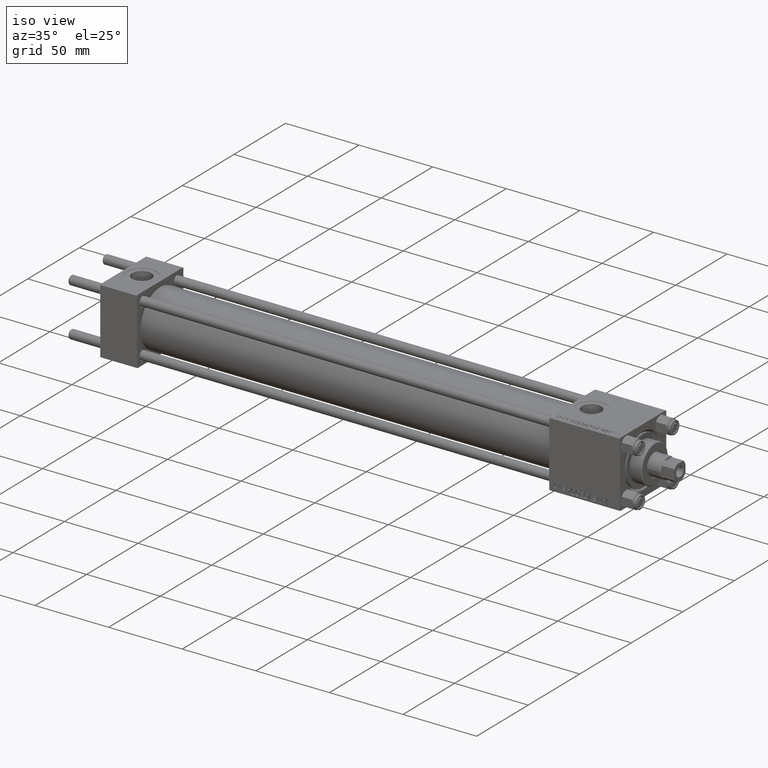
[diagram: clean part render]
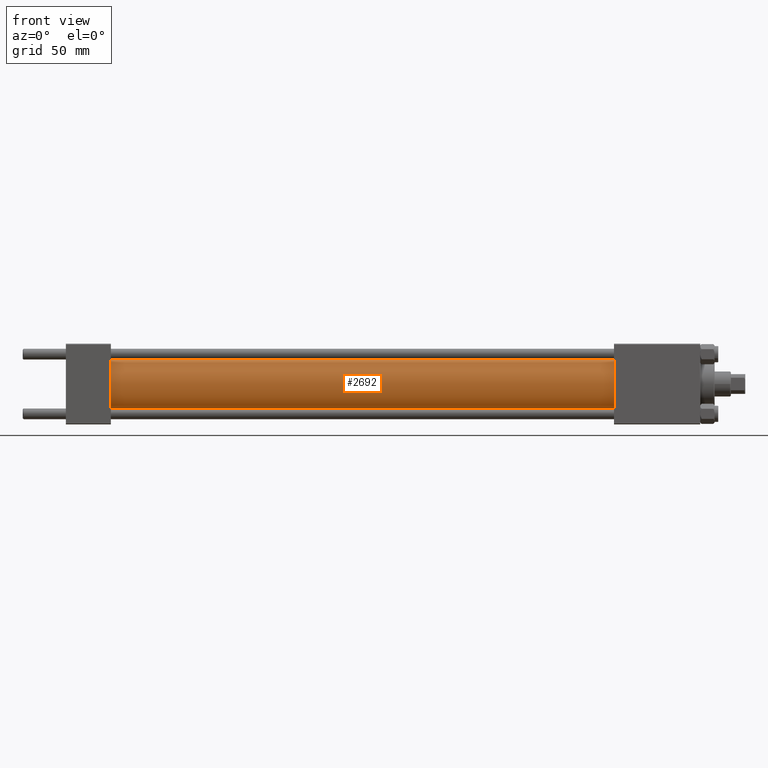
[diagram: tour spotlight — one face highlighted and labeled with its STEP entity id]
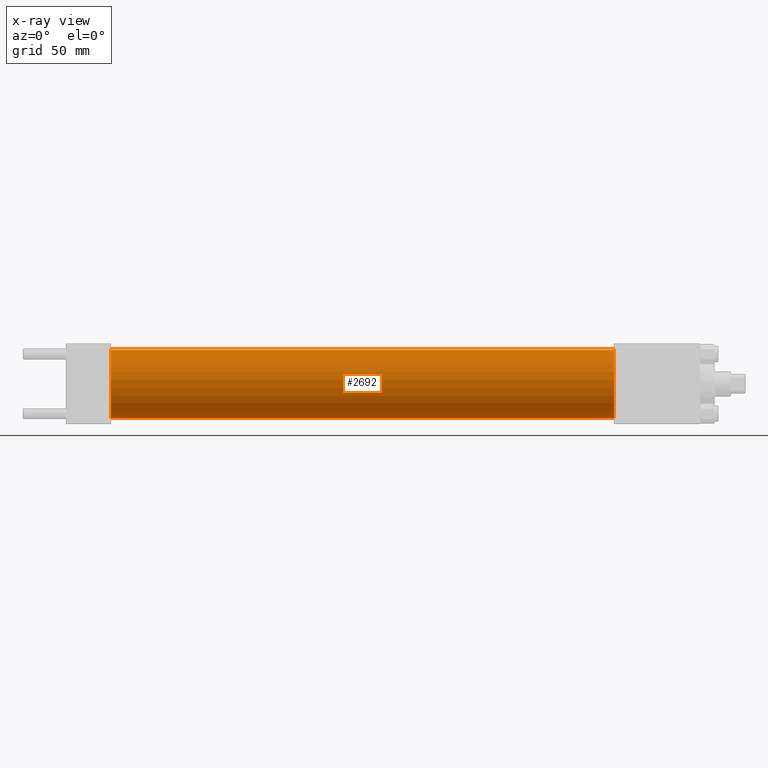
[diagram: x-ray of the same camera — body ghosted, this tour face saturated]
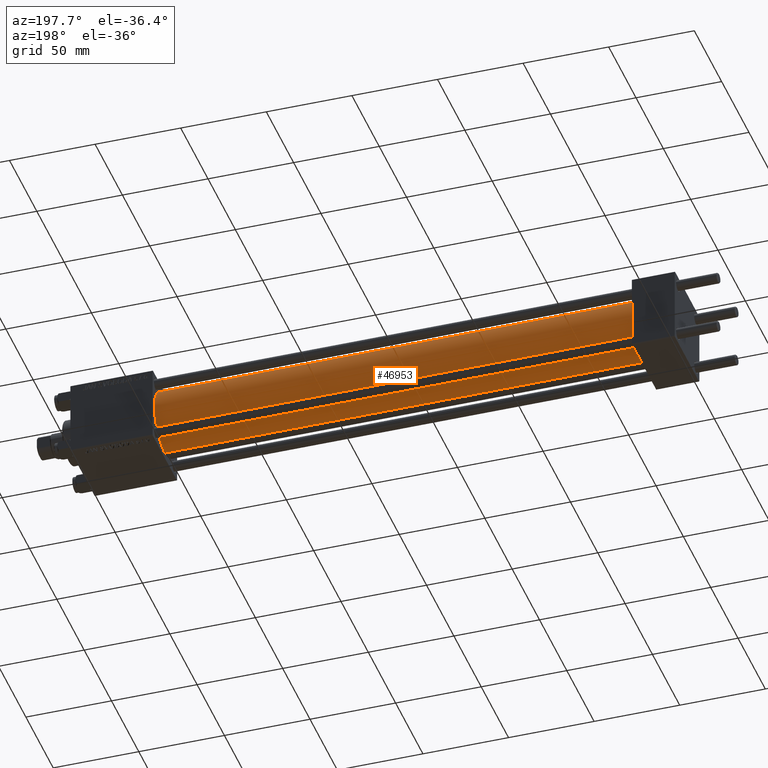
[diagram: tour spotlight — one face highlighted and labeled with its STEP entity id]
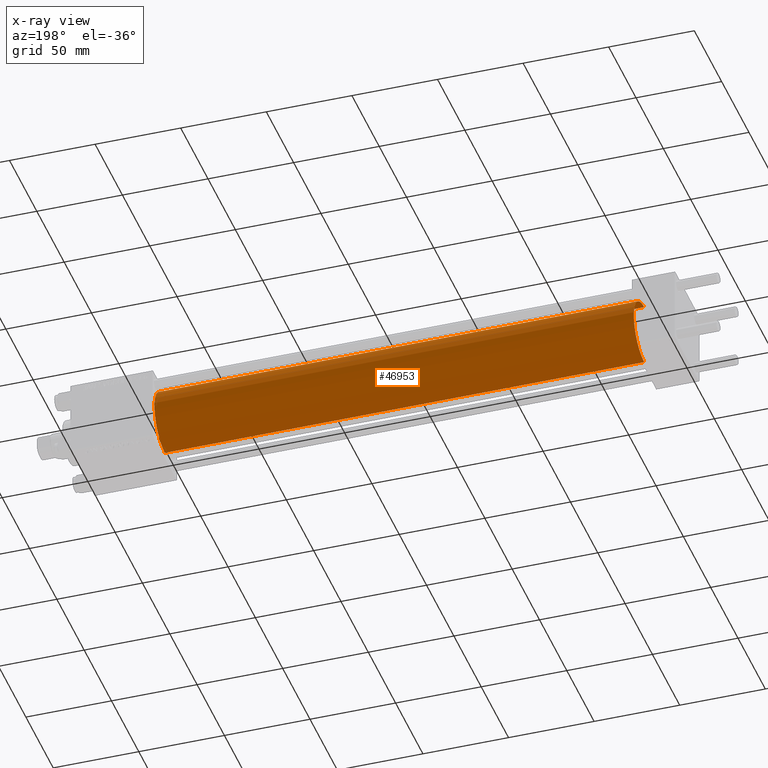
[diagram: x-ray of the same camera — body ghosted, this tour face saturated]
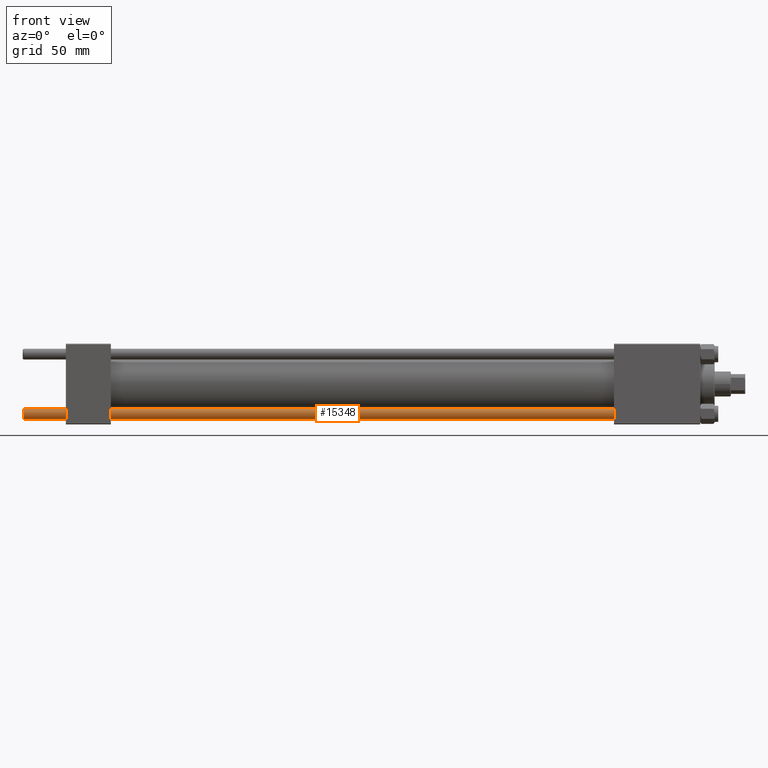
[diagram: tour spotlight — one face highlighted and labeled with its STEP entity id]
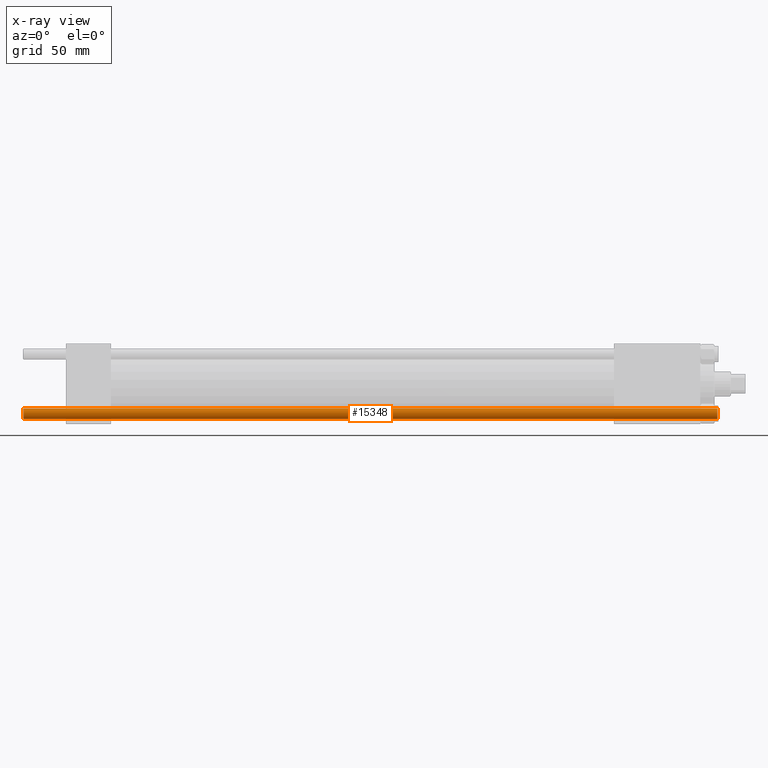
[diagram: x-ray of the same camera — body ghosted, this tour face saturated]
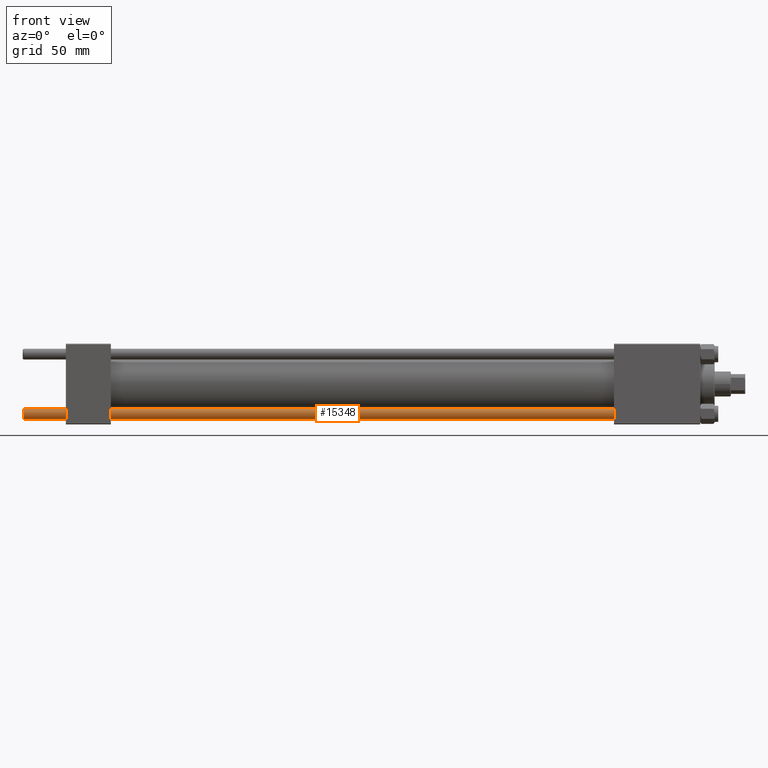
[diagram: tour spotlight — one face highlighted and labeled with its STEP entity id]
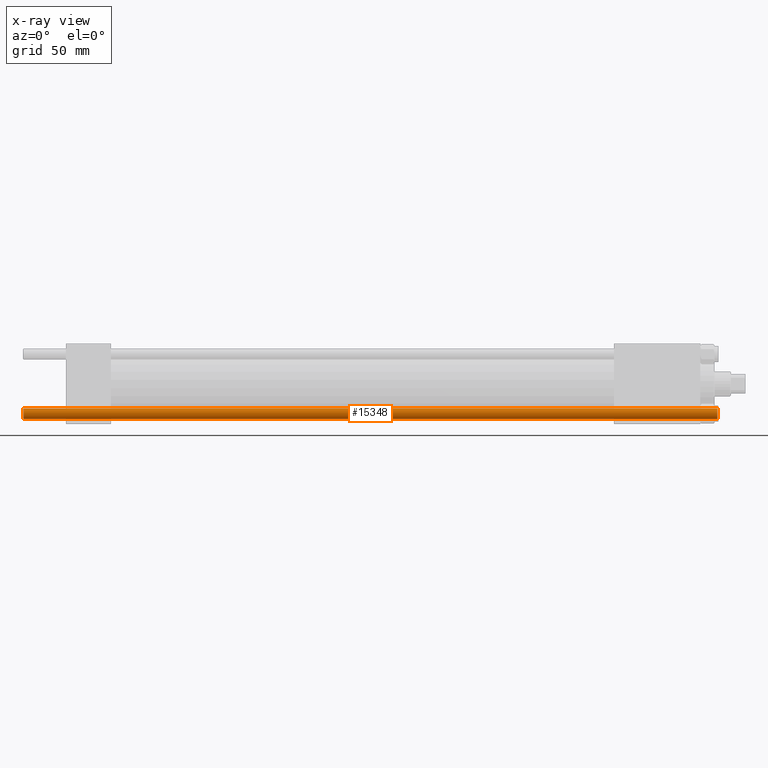
[diagram: x-ray of the same camera — body ghosted, this tour face saturated]
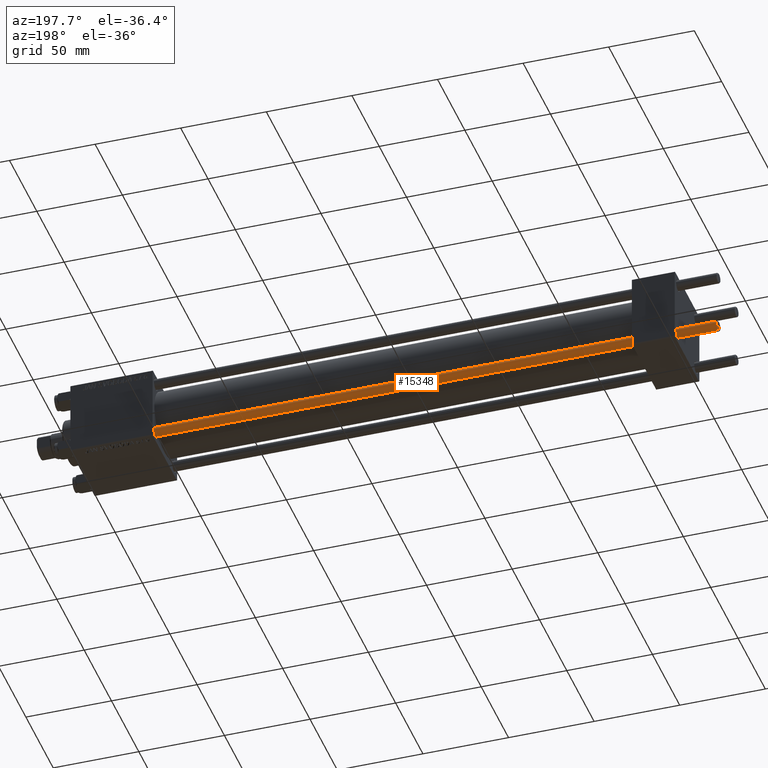
[diagram: tour spotlight — one face highlighted and labeled with its STEP entity id]
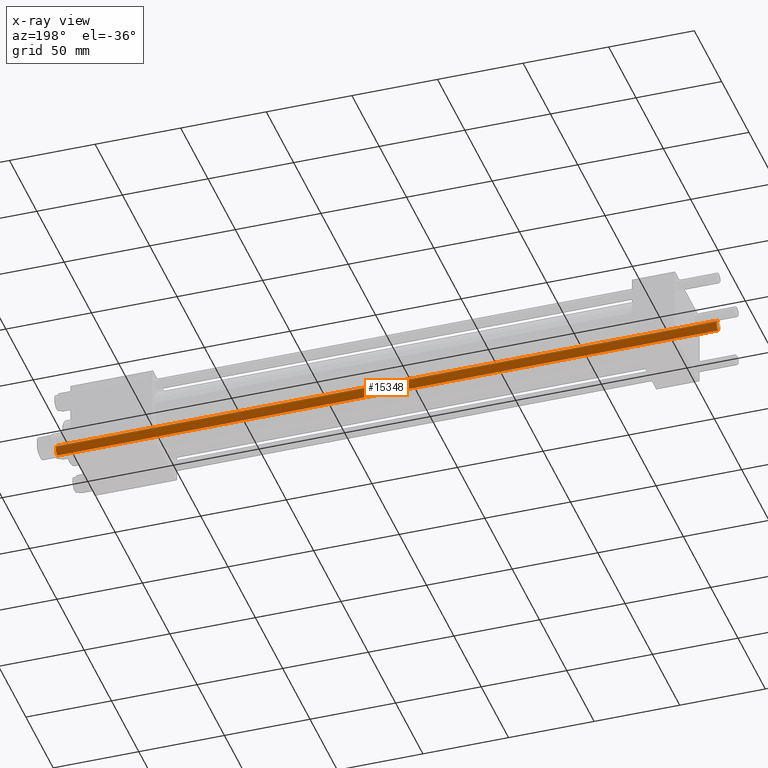
[diagram: x-ray of the same camera — body ghosted, this tour face saturated]
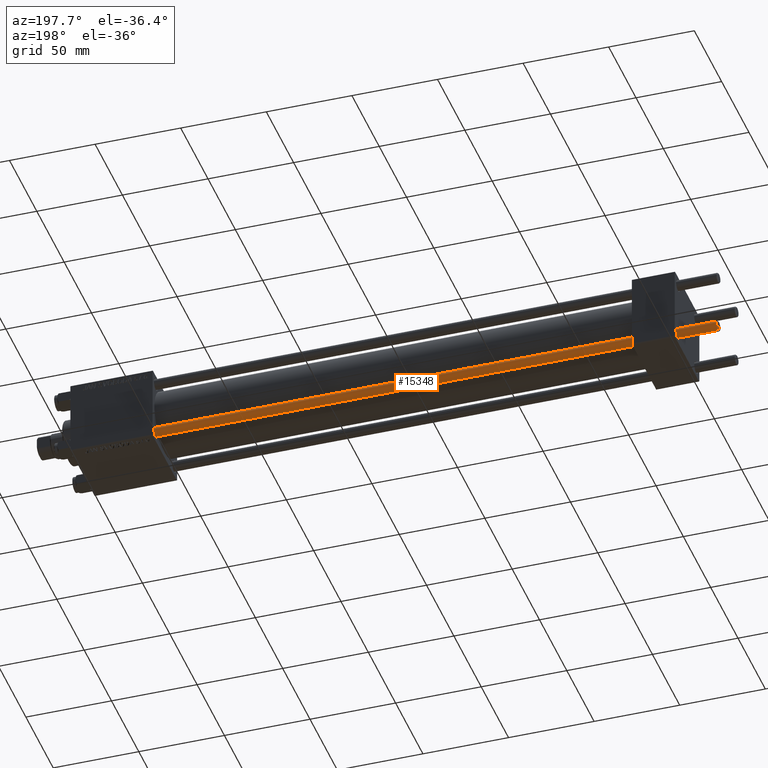
[diagram: tour spotlight — one face highlighted and labeled with its STEP entity id]
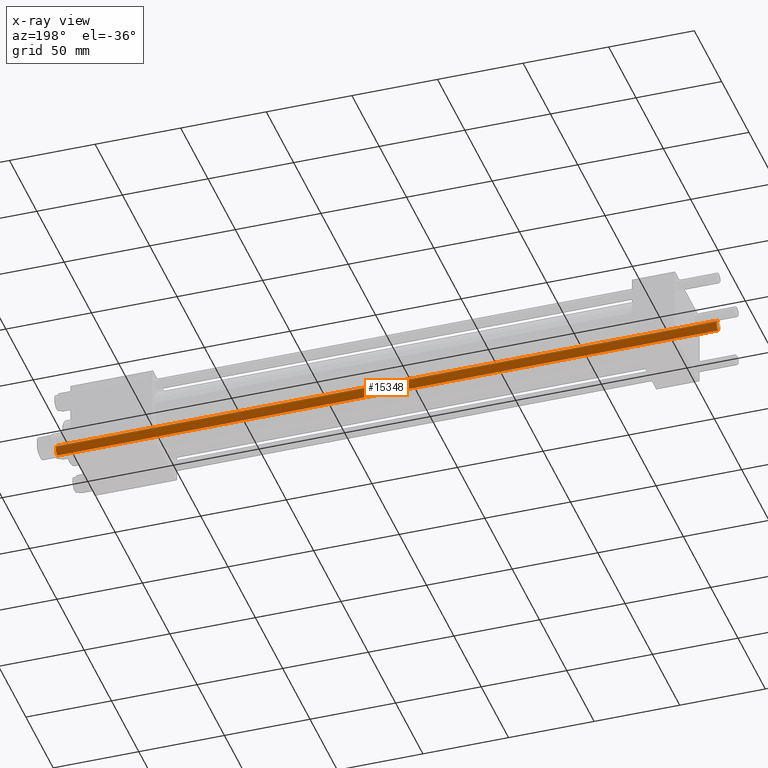
[diagram: x-ray of the same camera — body ghosted, this tour face saturated]
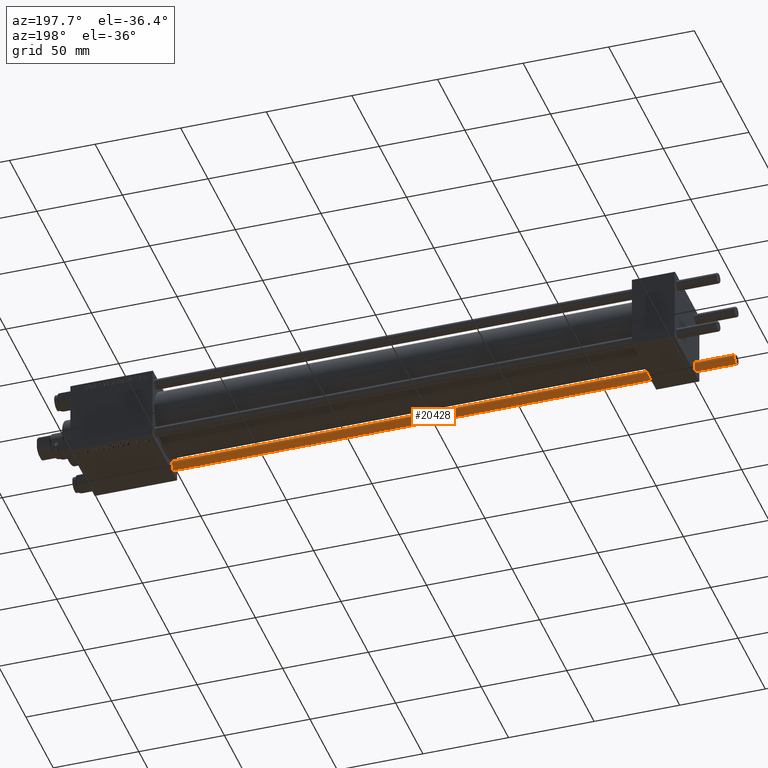
[diagram: tour spotlight — one face highlighted and labeled with its STEP entity id]
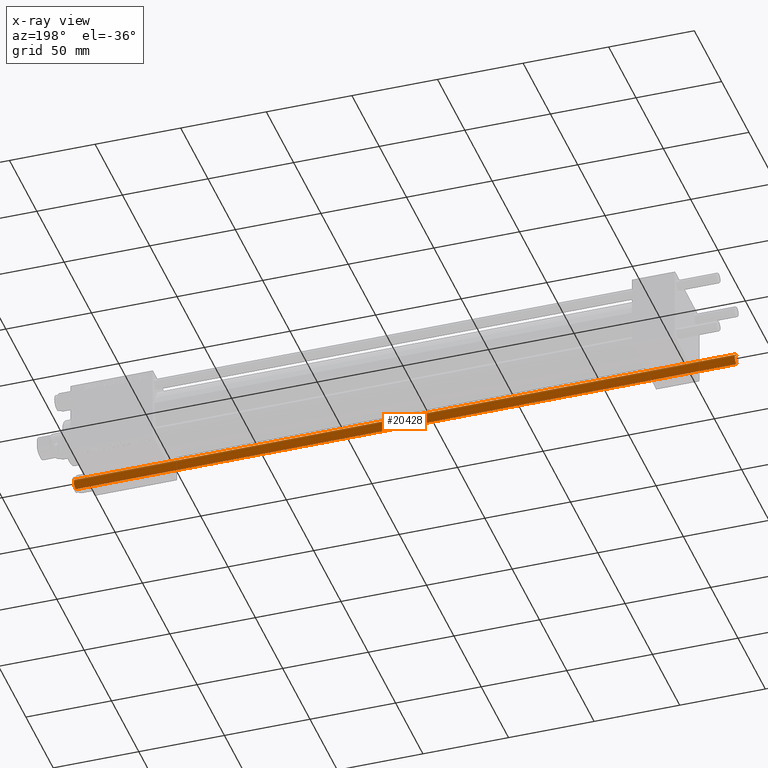
[diagram: x-ray of the same camera — body ghosted, this tour face saturated]
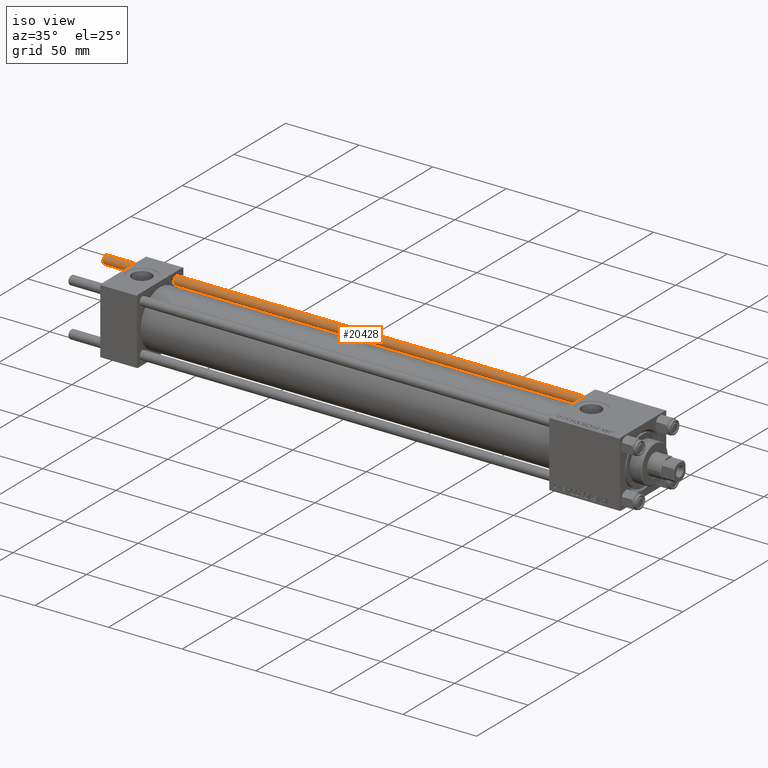
[diagram: tour spotlight — one face highlighted and labeled with its STEP entity id]
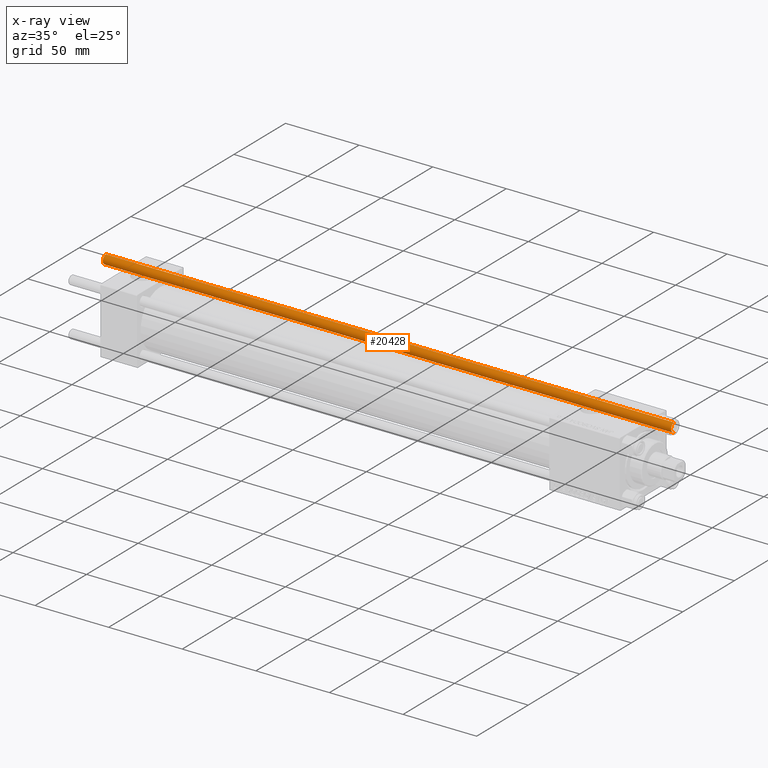
[diagram: x-ray of the same camera — body ghosted, this tour face saturated]
A machine part: a face-by-face anatomy tour. The part has 1133 B-rep faces; the first image is the clean iso view, then the 8 largest visible faces are spotlighted one at a time (largest first), each with its STEP entity span.

Face 1 — front view, entity #2692. An x-ray twin of the same camera follows (body ghosted, this face saturated) — the face is partly hidden behind the body. In plain terms, the highlighted cylindrical surface (edge-blend (fillet) strip) has radius 19 mm, axis along (-1, -0, -0).
Definition (entity closure, byte-faithful):
#277 = CARTESIAN_POINT ( 'NONE',  ( 25.00000000000002132, 0.000000000000000000, 19.00000000000000000 ) ) ;
#1554 = ORIENTED_EDGE ( 'NONE', *, *, #10870, .T. ) ;
#2529 = VERTEX_POINT ( 'NONE', #277 ) ;
#2692 = ADVANCED_FACE ( 'NONE', ( #47189 ), #4806, .T. ) ;
#4806 = CYLINDRICAL_SURFACE ( 'NONE', #32375, 19.00000000000000000 ) ;
#5005 = CARTESIAN_POINT ( 'NONE',  ( 305.0000000000000568, 0.000000000000000000, 0.000000000000000000 ) ) ;
#6769 = EDGE_CURVE ( 'NONE', #49634, #34014, #14683, .T. ) ;
#6874 = CARTESIAN_POINT ( 'NONE',  ( 305.0000000000000568, 2.326828918379970970E-15, -19.00000000000000000 ) ) ;
#7588 = ORIENTED_EDGE ( 'NONE', *, *, #6769, .F. ) ;
#8360 = VECTOR ( 'NONE', #24092, 1000.000000000000000 ) ;
#8558 = VERTEX_POINT ( 'NONE', #48192 ) ;
#8593 = DIRECTION ( 'NONE',  ( 0.000000000000000000, 0.000000000000000000, 1.000000000000000000 ) ) ;
#8694 = CARTESIAN_POINT ( 'NONE',  ( 305.0000000000000568, 0.000000000000000000, 19.00000000000000000 ) ) ;
#9143 = EDGE_CURVE ( 'NONE', #2529, #34014, #35687, .T. ) ;
#10870 = EDGE_CURVE ( 'NONE', #8558, #2529, #16254, .T. ) ;
#14683 = LINE ( 'NONE', #6874, #17180 ) ;
#16254 = LINE ( 'NONE', #8694, #8360 ) ;
#16694 = EDGE_LOOP ( 'NONE', ( #7588, #44286, #1554, #31962 ) ) ;
#16898 = CARTESIAN_POINT ( 'NONE',  ( 305.0000000000000568, 0.000000000000000000, 0.000000000000000000 ) ) ;
#17180 = VECTOR ( 'NONE', #22518, 1000.000000000000000 ) ;
#17980 = DIRECTION ( 'NONE',  ( 1.000000000000000000, -0.000000000000000000, 0.000000000000000000 ) ) ;
#19899 = DIRECTION ( 'NONE',  ( 0.000000000000000000, 0.000000000000000000, -1.000000000000000000 ) ) ;
#21538 = EDGE_CURVE ( 'NONE', #8558, #49634, #24740, .T. ) ;
#22518 = DIRECTION ( 'NONE',  ( -1.000000000000000000, -0.000000000000000000, -0.000000000000000000 ) ) ;
#23626 = AXIS2_PLACEMENT_3D ( 'NONE', #48502, #17980, #25797 ) ;
#24092 = DIRECTION ( 'NONE',  ( -1.000000000000000000, -0.000000000000000000, -0.000000000000000000 ) ) ;
#24740 = CIRCLE ( 'NONE', #28768, 19.00000000000000000 ) ;
#25797 = DIRECTION ( 'NONE',  ( 0.000000000000000000, 0.000000000000000000, 1.000000000000000000 ) ) ;
#27517 = DIRECTION ( 'NONE',  ( -1.000000000000000000, -0.000000000000000000, -0.000000000000000000 ) ) ;
#28768 = AXIS2_PLACEMENT_3D ( 'NONE', #5005, #43333, #19899 ) ;
#31962 = ORIENTED_EDGE ( 'NONE', *, *, #9143, .T. ) ;
#32375 = AXIS2_PLACEMENT_3D ( 'NONE', #16898, #27517, #8593 ) ;
#34014 = VERTEX_POINT ( 'NONE', #44920 ) ;
#35687 = CIRCLE ( 'NONE', #23626, 19.00000000000000000 ) ;
#43333 = DIRECTION ( 'NONE',  ( 1.000000000000000000, 0.000000000000000000, 0.000000000000000000 ) ) ;
#44286 = ORIENTED_EDGE ( 'NONE', *, *, #21538, .F. ) ;
#44920 = CARTESIAN_POINT ( 'NONE',  ( 25.00000000000002132, 2.326828918379970970E-15, -19.00000000000000000 ) ) ;
#47189 = FACE_OUTER_BOUND ( 'NONE', #16694, .T. ) ;
#47388 = CARTESIAN_POINT ( 'NONE',  ( 305.0000000000000568, 2.326828918379970970E-15, -19.00000000000000000 ) ) ;
#48192 = CARTESIAN_POINT ( 'NONE',  ( 305.0000000000000568, 0.000000000000000000, 19.00000000000000000 ) ) ;
#48502 = CARTESIAN_POINT ( 'NONE',  ( 25.00000000000002132, 0.000000000000000000, 0.000000000000000000 ) ) ;
#49634 = VERTEX_POINT ( 'NONE', #47388 ) ;

Face 2 — auxiliary view, entity #46953. An x-ray twin of the same camera follows (body ghosted, this face saturated) — the face is partly hidden behind the body. In plain terms, the highlighted cylindrical surface (edge-blend (fillet) strip) has radius 19 mm, axis along (-1, -0, -0).
Definition (entity closure, byte-faithful):
#277 = CARTESIAN_POINT ( 'NONE',  ( 25.00000000000002132, 0.000000000000000000, 19.00000000000000000 ) ) ;
#2529 = VERTEX_POINT ( 'NONE', #277 ) ;
#3662 = EDGE_CURVE ( 'NONE', #34014, #2529, #46925, .T. ) ;
#4405 = CIRCLE ( 'NONE', #22132, 19.00000000000000000 ) ;
#6769 = EDGE_CURVE ( 'NONE', #49634, #34014, #14683, .T. ) ;
#6874 = CARTESIAN_POINT ( 'NONE',  ( 305.0000000000000568, 2.326828918379970970E-15, -19.00000000000000000 ) ) ;
#8360 = VECTOR ( 'NONE', #24092, 1000.000000000000000 ) ;
#8558 = VERTEX_POINT ( 'NONE', #48192 ) ;
#8694 = CARTESIAN_POINT ( 'NONE',  ( 305.0000000000000568, 0.000000000000000000, 19.00000000000000000 ) ) ;
#10870 = EDGE_CURVE ( 'NONE', #8558, #2529, #16254, .T. ) ;
#14308 = DIRECTION ( 'NONE',  ( 0.000000000000000000, 0.000000000000000000, -1.000000000000000000 ) ) ;
#14683 = LINE ( 'NONE', #6874, #17180 ) ;
#14738 = DIRECTION ( 'NONE',  ( 0.000000000000000000, 0.000000000000000000, 1.000000000000000000 ) ) ;
#16254 = LINE ( 'NONE', #8694, #8360 ) ;
#16387 = AXIS2_PLACEMENT_3D ( 'NONE', #46520, #49300, #14738 ) ;
#17014 = ORIENTED_EDGE ( 'NONE', *, *, #6769, .T. ) ;
#17180 = VECTOR ( 'NONE', #22518, 1000.000000000000000 ) ;
#22132 = AXIS2_PLACEMENT_3D ( 'NONE', #26179, #36775, #14308 ) ;
#22518 = DIRECTION ( 'NONE',  ( -1.000000000000000000, -0.000000000000000000, -0.000000000000000000 ) ) ;
#24092 = DIRECTION ( 'NONE',  ( -1.000000000000000000, -0.000000000000000000, -0.000000000000000000 ) ) ;
#26179 = CARTESIAN_POINT ( 'NONE',  ( 305.0000000000000568, 0.000000000000000000, 0.000000000000000000 ) ) ;
#29890 = EDGE_LOOP ( 'NONE', ( #39600, #17014, #37067, #41863 ) ) ;
#30358 = DIRECTION ( 'NONE',  ( 1.000000000000000000, -0.000000000000000000, 0.000000000000000000 ) ) ;
#31137 = CYLINDRICAL_SURFACE ( 'NONE', #16387, 19.00000000000000000 ) ;
#34014 = VERTEX_POINT ( 'NONE', #44920 ) ;
#34621 = CARTESIAN_POINT ( 'NONE',  ( 25.00000000000002132, 0.000000000000000000, 0.000000000000000000 ) ) ;
#36775 = DIRECTION ( 'NONE',  ( 1.000000000000000000, 0.000000000000000000, 0.000000000000000000 ) ) ;
#37067 = ORIENTED_EDGE ( 'NONE', *, *, #3662, .T. ) ;
#38064 = AXIS2_PLACEMENT_3D ( 'NONE', #34621, #30358, #41691 ) ;
#39600 = ORIENTED_EDGE ( 'NONE', *, *, #49733, .F. ) ;
#41691 = DIRECTION ( 'NONE',  ( 0.000000000000000000, 0.000000000000000000, 1.000000000000000000 ) ) ;
#41863 = ORIENTED_EDGE ( 'NONE', *, *, #10870, .F. ) ;
#44920 = CARTESIAN_POINT ( 'NONE',  ( 25.00000000000002132, 2.326828918379970970E-15, -19.00000000000000000 ) ) ;
#46266 = FACE_OUTER_BOUND ( 'NONE', #29890, .T. ) ;
#46520 = CARTESIAN_POINT ( 'NONE',  ( 305.0000000000000568, 0.000000000000000000, 0.000000000000000000 ) ) ;
#46925 = CIRCLE ( 'NONE', #38064, 19.00000000000000000 ) ;
#46953 = ADVANCED_FACE ( 'NONE', ( #46266 ), #31137, .T. ) ;
#47388 = CARTESIAN_POINT ( 'NONE',  ( 305.0000000000000568, 2.326828918379970970E-15, -19.00000000000000000 ) ) ;
#48192 = CARTESIAN_POINT ( 'NONE',  ( 305.0000000000000568, 0.000000000000000000, 19.00000000000000000 ) ) ;
#49300 = DIRECTION ( 'NONE',  ( -1.000000000000000000, -0.000000000000000000, -0.000000000000000000 ) ) ;
#49634 = VERTEX_POINT ( 'NONE', #47388 ) ;
#49733 = EDGE_CURVE ( 'NONE', #49634, #8558, #4405, .T. ) ;

Face 3 — front view, entity #15348. An x-ray twin of the same camera follows (body ghosted, this face saturated) — the face is partly hidden behind the body. In plain terms, the highlighted cylindrical surface (edge-blend (fillet) strip) has radius 3 mm, axis along (1, -0, 0).
Definition (entity closure, byte-faithful):
#426 = DIRECTION ( 'NONE',  ( -0.000000000000000000, -0.000000000000000000, -1.000000000000000000 ) ) ;
#866 = VERTEX_POINT ( 'NONE', #2530 ) ;
#2530 = CARTESIAN_POINT ( 'NONE',  ( -3.000000000000000444, 0.000000000000000000, 0.5000000000000004441 ) ) ;
#3727 = AXIS2_PLACEMENT_3D ( 'NONE', #42543, #426, #35480 ) ;
#4673 = AXIS2_PLACEMENT_3D ( 'NONE', #29911, #14262, #49325 ) ;
#5410 = DIRECTION ( 'NONE',  ( 0.000000000000000000, 0.000000000000000000, -1.000000000000000000 ) ) ;
#6368 = VERTEX_POINT ( 'NONE', #43281 ) ;
#8380 = VERTEX_POINT ( 'NONE', #19470 ) ;
#9301 = DIRECTION ( 'NONE',  ( -0.000000000000000000, -0.000000000000000000, -1.000000000000000000 ) ) ;
#9689 = EDGE_CURVE ( 'NONE', #36913, #866, #40563, .T. ) ;
#11140 = EDGE_LOOP ( 'NONE', ( #24669, #12709, #17853, #24691 ) ) ;
#11785 = FACE_OUTER_BOUND ( 'NONE', #11140, .T. ) ;
#12139 = CARTESIAN_POINT ( 'NONE',  ( -3.000000000000000444, 0.000000000000000000, 386.5000000000000568 ) ) ;
#12709 = ORIENTED_EDGE ( 'NONE', *, *, #23077, .T. ) ;
#13334 = CARTESIAN_POINT ( 'NONE',  ( -3.000000000000000444, 0.000000000000000000, 387.0000000000000000 ) ) ;
#14262 = DIRECTION ( 'NONE',  ( -0.000000000000000000, -0.000000000000000000, 1.000000000000000000 ) ) ;
#15348 = ADVANCED_FACE ( 'NONE', ( #11785 ), #31457, .T. ) ;
#17505 = CARTESIAN_POINT ( 'NONE',  ( 0.000000000000000000, 0.000000000000000000, 386.5000000000000568 ) ) ;
#17853 = ORIENTED_EDGE ( 'NONE', *, *, #23353, .T. ) ;
#19470 = CARTESIAN_POINT ( 'NONE',  ( 3.000000000000000444, 3.673940397442060361E-16, 386.5000000000000568 ) ) ;
#23077 = EDGE_CURVE ( 'NONE', #8380, #6368, #31031, .T. ) ;
#23353 = EDGE_CURVE ( 'NONE', #6368, #866, #40106, .T. ) ;
#24669 = ORIENTED_EDGE ( 'NONE', *, *, #30502, .T. ) ;
#24691 = ORIENTED_EDGE ( 'NONE', *, *, #9689, .F. ) ;
#27238 = CARTESIAN_POINT ( 'NONE',  ( 3.000000000000000444, 3.673940397442060361E-16, 387.0000000000000000 ) ) ;
#28836 = VECTOR ( 'NONE', #42610, 1000.000000000000000 ) ;
#28864 = DIRECTION ( 'NONE',  ( 1.000000000000000000, 0.000000000000000000, 0.000000000000000000 ) ) ;
#29225 = VECTOR ( 'NONE', #9301, 1000.000000000000000 ) ;
#29911 = CARTESIAN_POINT ( 'NONE',  ( 0.000000000000000000, 0.000000000000000000, 0.5000000000000004441 ) ) ;
#30502 = EDGE_CURVE ( 'NONE', #36913, #8380, #45126, .T. ) ;
#31031 = LINE ( 'NONE', #27238, #28836 ) ;
#31457 = CYLINDRICAL_SURFACE ( 'NONE', #3727, 3.000000000000000444 ) ;
#35480 = DIRECTION ( 'NONE',  ( -1.000000000000000000, 0.000000000000000000, 0.000000000000000000 ) ) ;
#36913 = VERTEX_POINT ( 'NONE', #12139 ) ;
#39513 = AXIS2_PLACEMENT_3D ( 'NONE', #17505, #5410, #28864 ) ;
#40106 = CIRCLE ( 'NONE', #4673, 3.000000000000000444 ) ;
#40563 = LINE ( 'NONE', #13334, #29225 ) ;
#42543 = CARTESIAN_POINT ( 'NONE',  ( 0.000000000000000000, 0.000000000000000000, 387.0000000000000000 ) ) ;
#42610 = DIRECTION ( 'NONE',  ( -0.000000000000000000, -0.000000000000000000, -1.000000000000000000 ) ) ;
#43281 = CARTESIAN_POINT ( 'NONE',  ( 3.000000000000000444, 3.673940397442060361E-16, 0.5000000000000004441 ) ) ;
#45126 = CIRCLE ( 'NONE', #39513, 3.000000000000000444 ) ;
#49325 = DIRECTION ( 'NONE',  ( 1.000000000000000000, 0.000000000000000000, 0.000000000000000000 ) ) ;

Face 4 — front view, entity #15348. An x-ray twin of the same camera follows (body ghosted, this face saturated) — the face is partly hidden behind the body. In plain terms, the highlighted cylindrical surface (edge-blend (fillet) strip) has radius 3 mm, axis along (-1, 0, 0).
Definition (entity closure, byte-faithful):
#426 = DIRECTION ( 'NONE',  ( -0.000000000000000000, -0.000000000000000000, -1.000000000000000000 ) ) ;
#866 = VERTEX_POINT ( 'NONE', #2530 ) ;
#2530 = CARTESIAN_POINT ( 'NONE',  ( -3.000000000000000444, 0.000000000000000000, 0.5000000000000004441 ) ) ;
#3727 = AXIS2_PLACEMENT_3D ( 'NONE', #42543, #426, #35480 ) ;
#4673 = AXIS2_PLACEMENT_3D ( 'NONE', #29911, #14262, #49325 ) ;
#5410 = DIRECTION ( 'NONE',  ( 0.000000000000000000, 0.000000000000000000, -1.000000000000000000 ) ) ;
#6368 = VERTEX_POINT ( 'NONE', #43281 ) ;
#8380 = VERTEX_POINT ( 'NONE', #19470 ) ;
#9301 = DIRECTION ( 'NONE',  ( -0.000000000000000000, -0.000000000000000000, -1.000000000000000000 ) ) ;
#9689 = EDGE_CURVE ( 'NONE', #36913, #866, #40563, .T. ) ;
#11140 = EDGE_LOOP ( 'NONE', ( #24669, #12709, #17853, #24691 ) ) ;
#11785 = FACE_OUTER_BOUND ( 'NONE', #11140, .T. ) ;
#12139 = CARTESIAN_POINT ( 'NONE',  ( -3.000000000000000444, 0.000000000000000000, 386.5000000000000568 ) ) ;
#12709 = ORIENTED_EDGE ( 'NONE', *, *, #23077, .T. ) ;
#13334 = CARTESIAN_POINT ( 'NONE',  ( -3.000000000000000444, 0.000000000000000000, 387.0000000000000000 ) ) ;
#14262 = DIRECTION ( 'NONE',  ( -0.000000000000000000, -0.000000000000000000, 1.000000000000000000 ) ) ;
#15348 = ADVANCED_FACE ( 'NONE', ( #11785 ), #31457, .T. ) ;
#17505 = CARTESIAN_POINT ( 'NONE',  ( 0.000000000000000000, 0.000000000000000000, 386.5000000000000568 ) ) ;
#17853 = ORIENTED_EDGE ( 'NONE', *, *, #23353, .T. ) ;
#19470 = CARTESIAN_POINT ( 'NONE',  ( 3.000000000000000444, 3.673940397442060361E-16, 386.5000000000000568 ) ) ;
#23077 = EDGE_CURVE ( 'NONE', #8380, #6368, #31031, .T. ) ;
#23353 = EDGE_CURVE ( 'NONE', #6368, #866, #40106, .T. ) ;
#24669 = ORIENTED_EDGE ( 'NONE', *, *, #30502, .T. ) ;
#24691 = ORIENTED_EDGE ( 'NONE', *, *, #9689, .F. ) ;
#27238 = CARTESIAN_POINT ( 'NONE',  ( 3.000000000000000444, 3.673940397442060361E-16, 387.0000000000000000 ) ) ;
#28836 = VECTOR ( 'NONE', #42610, 1000.000000000000000 ) ;
#28864 = DIRECTION ( 'NONE',  ( 1.000000000000000000, 0.000000000000000000, 0.000000000000000000 ) ) ;
#29225 = VECTOR ( 'NONE', #9301, 1000.000000000000000 ) ;
#29911 = CARTESIAN_POINT ( 'NONE',  ( 0.000000000000000000, 0.000000000000000000, 0.5000000000000004441 ) ) ;
#30502 = EDGE_CURVE ( 'NONE', #36913, #8380, #45126, .T. ) ;
#31031 = LINE ( 'NONE', #27238, #28836 ) ;
#31457 = CYLINDRICAL_SURFACE ( 'NONE', #3727, 3.000000000000000444 ) ;
#35480 = DIRECTION ( 'NONE',  ( -1.000000000000000000, 0.000000000000000000, 0.000000000000000000 ) ) ;
#36913 = VERTEX_POINT ( 'NONE', #12139 ) ;
#39513 = AXIS2_PLACEMENT_3D ( 'NONE', #17505, #5410, #28864 ) ;
#40106 = CIRCLE ( 'NONE', #4673, 3.000000000000000444 ) ;
#40563 = LINE ( 'NONE', #13334, #29225 ) ;
#42543 = CARTESIAN_POINT ( 'NONE',  ( 0.000000000000000000, 0.000000000000000000, 387.0000000000000000 ) ) ;
#42610 = DIRECTION ( 'NONE',  ( -0.000000000000000000, -0.000000000000000000, -1.000000000000000000 ) ) ;
#43281 = CARTESIAN_POINT ( 'NONE',  ( 3.000000000000000444, 3.673940397442060361E-16, 0.5000000000000004441 ) ) ;
#45126 = CIRCLE ( 'NONE', #39513, 3.000000000000000444 ) ;
#49325 = DIRECTION ( 'NONE',  ( 1.000000000000000000, 0.000000000000000000, 0.000000000000000000 ) ) ;

Face 5 — auxiliary view, entity #15348. An x-ray twin of the same camera follows (body ghosted, this face saturated) — the face is partly hidden behind the body. In plain terms, the highlighted cylindrical surface (edge-blend (fillet) strip) has radius 3 mm, axis along (-1, -0, -0).
Definition (entity closure, byte-faithful):
#426 = DIRECTION ( 'NONE',  ( -0.000000000000000000, -0.000000000000000000, -1.000000000000000000 ) ) ;
#866 = VERTEX_POINT ( 'NONE', #2530 ) ;
#2530 = CARTESIAN_POINT ( 'NONE',  ( -3.000000000000000444, 0.000000000000000000, 0.5000000000000004441 ) ) ;
#3727 = AXIS2_PLACEMENT_3D ( 'NONE', #42543, #426, #35480 ) ;
#4673 = AXIS2_PLACEMENT_3D ( 'NONE', #29911, #14262, #49325 ) ;
#5410 = DIRECTION ( 'NONE',  ( 0.000000000000000000, 0.000000000000000000, -1.000000000000000000 ) ) ;
#6368 = VERTEX_POINT ( 'NONE', #43281 ) ;
#8380 = VERTEX_POINT ( 'NONE', #19470 ) ;
#9301 = DIRECTION ( 'NONE',  ( -0.000000000000000000, -0.000000000000000000, -1.000000000000000000 ) ) ;
#9689 = EDGE_CURVE ( 'NONE', #36913, #866, #40563, .T. ) ;
#11140 = EDGE_LOOP ( 'NONE', ( #24669, #12709, #17853, #24691 ) ) ;
#11785 = FACE_OUTER_BOUND ( 'NONE', #11140, .T. ) ;
#12139 = CARTESIAN_POINT ( 'NONE',  ( -3.000000000000000444, 0.000000000000000000, 386.5000000000000568 ) ) ;
#12709 = ORIENTED_EDGE ( 'NONE', *, *, #23077, .T. ) ;
#13334 = CARTESIAN_POINT ( 'NONE',  ( -3.000000000000000444, 0.000000000000000000, 387.0000000000000000 ) ) ;
#14262 = DIRECTION ( 'NONE',  ( -0.000000000000000000, -0.000000000000000000, 1.000000000000000000 ) ) ;
#15348 = ADVANCED_FACE ( 'NONE', ( #11785 ), #31457, .T. ) ;
#17505 = CARTESIAN_POINT ( 'NONE',  ( 0.000000000000000000, 0.000000000000000000, 386.5000000000000568 ) ) ;
#17853 = ORIENTED_EDGE ( 'NONE', *, *, #23353, .T. ) ;
#19470 = CARTESIAN_POINT ( 'NONE',  ( 3.000000000000000444, 3.673940397442060361E-16, 386.5000000000000568 ) ) ;
#23077 = EDGE_CURVE ( 'NONE', #8380, #6368, #31031, .T. ) ;
#23353 = EDGE_CURVE ( 'NONE', #6368, #866, #40106, .T. ) ;
#24669 = ORIENTED_EDGE ( 'NONE', *, *, #30502, .T. ) ;
#24691 = ORIENTED_EDGE ( 'NONE', *, *, #9689, .F. ) ;
#27238 = CARTESIAN_POINT ( 'NONE',  ( 3.000000000000000444, 3.673940397442060361E-16, 387.0000000000000000 ) ) ;
#28836 = VECTOR ( 'NONE', #42610, 1000.000000000000000 ) ;
#28864 = DIRECTION ( 'NONE',  ( 1.000000000000000000, 0.000000000000000000, 0.000000000000000000 ) ) ;
#29225 = VECTOR ( 'NONE', #9301, 1000.000000000000000 ) ;
#29911 = CARTESIAN_POINT ( 'NONE',  ( 0.000000000000000000, 0.000000000000000000, 0.5000000000000004441 ) ) ;
#30502 = EDGE_CURVE ( 'NONE', #36913, #8380, #45126, .T. ) ;
#31031 = LINE ( 'NONE', #27238, #28836 ) ;
#31457 = CYLINDRICAL_SURFACE ( 'NONE', #3727, 3.000000000000000444 ) ;
#35480 = DIRECTION ( 'NONE',  ( -1.000000000000000000, 0.000000000000000000, 0.000000000000000000 ) ) ;
#36913 = VERTEX_POINT ( 'NONE', #12139 ) ;
#39513 = AXIS2_PLACEMENT_3D ( 'NONE', #17505, #5410, #28864 ) ;
#40106 = CIRCLE ( 'NONE', #4673, 3.000000000000000444 ) ;
#40563 = LINE ( 'NONE', #13334, #29225 ) ;
#42543 = CARTESIAN_POINT ( 'NONE',  ( 0.000000000000000000, 0.000000000000000000, 387.0000000000000000 ) ) ;
#42610 = DIRECTION ( 'NONE',  ( -0.000000000000000000, -0.000000000000000000, -1.000000000000000000 ) ) ;
#43281 = CARTESIAN_POINT ( 'NONE',  ( 3.000000000000000444, 3.673940397442060361E-16, 0.5000000000000004441 ) ) ;
#45126 = CIRCLE ( 'NONE', #39513, 3.000000000000000444 ) ;
#49325 = DIRECTION ( 'NONE',  ( 1.000000000000000000, 0.000000000000000000, 0.000000000000000000 ) ) ;

Face 6 — auxiliary view, entity #15348. An x-ray twin of the same camera follows (body ghosted, this face saturated) — the face is partly hidden behind the body. In plain terms, the highlighted cylindrical surface (edge-blend (fillet) strip) has radius 3 mm, axis along (1, 0, -0).
Definition (entity closure, byte-faithful):
#426 = DIRECTION ( 'NONE',  ( -0.000000000000000000, -0.000000000000000000, -1.000000000000000000 ) ) ;
#866 = VERTEX_POINT ( 'NONE', #2530 ) ;
#2530 = CARTESIAN_POINT ( 'NONE',  ( -3.000000000000000444, 0.000000000000000000, 0.5000000000000004441 ) ) ;
#3727 = AXIS2_PLACEMENT_3D ( 'NONE', #42543, #426, #35480 ) ;
#4673 = AXIS2_PLACEMENT_3D ( 'NONE', #29911, #14262, #49325 ) ;
#5410 = DIRECTION ( 'NONE',  ( 0.000000000000000000, 0.000000000000000000, -1.000000000000000000 ) ) ;
#6368 = VERTEX_POINT ( 'NONE', #43281 ) ;
#8380 = VERTEX_POINT ( 'NONE', #19470 ) ;
#9301 = DIRECTION ( 'NONE',  ( -0.000000000000000000, -0.000000000000000000, -1.000000000000000000 ) ) ;
#9689 = EDGE_CURVE ( 'NONE', #36913, #866, #40563, .T. ) ;
#11140 = EDGE_LOOP ( 'NONE', ( #24669, #12709, #17853, #24691 ) ) ;
#11785 = FACE_OUTER_BOUND ( 'NONE', #11140, .T. ) ;
#12139 = CARTESIAN_POINT ( 'NONE',  ( -3.000000000000000444, 0.000000000000000000, 386.5000000000000568 ) ) ;
#12709 = ORIENTED_EDGE ( 'NONE', *, *, #23077, .T. ) ;
#13334 = CARTESIAN_POINT ( 'NONE',  ( -3.000000000000000444, 0.000000000000000000, 387.0000000000000000 ) ) ;
#14262 = DIRECTION ( 'NONE',  ( -0.000000000000000000, -0.000000000000000000, 1.000000000000000000 ) ) ;
#15348 = ADVANCED_FACE ( 'NONE', ( #11785 ), #31457, .T. ) ;
#17505 = CARTESIAN_POINT ( 'NONE',  ( 0.000000000000000000, 0.000000000000000000, 386.5000000000000568 ) ) ;
#17853 = ORIENTED_EDGE ( 'NONE', *, *, #23353, .T. ) ;
#19470 = CARTESIAN_POINT ( 'NONE',  ( 3.000000000000000444, 3.673940397442060361E-16, 386.5000000000000568 ) ) ;
#23077 = EDGE_CURVE ( 'NONE', #8380, #6368, #31031, .T. ) ;
#23353 = EDGE_CURVE ( 'NONE', #6368, #866, #40106, .T. ) ;
#24669 = ORIENTED_EDGE ( 'NONE', *, *, #30502, .T. ) ;
#24691 = ORIENTED_EDGE ( 'NONE', *, *, #9689, .F. ) ;
#27238 = CARTESIAN_POINT ( 'NONE',  ( 3.000000000000000444, 3.673940397442060361E-16, 387.0000000000000000 ) ) ;
#28836 = VECTOR ( 'NONE', #42610, 1000.000000000000000 ) ;
#28864 = DIRECTION ( 'NONE',  ( 1.000000000000000000, 0.000000000000000000, 0.000000000000000000 ) ) ;
#29225 = VECTOR ( 'NONE', #9301, 1000.000000000000000 ) ;
#29911 = CARTESIAN_POINT ( 'NONE',  ( 0.000000000000000000, 0.000000000000000000, 0.5000000000000004441 ) ) ;
#30502 = EDGE_CURVE ( 'NONE', #36913, #8380, #45126, .T. ) ;
#31031 = LINE ( 'NONE', #27238, #28836 ) ;
#31457 = CYLINDRICAL_SURFACE ( 'NONE', #3727, 3.000000000000000444 ) ;
#35480 = DIRECTION ( 'NONE',  ( -1.000000000000000000, 0.000000000000000000, 0.000000000000000000 ) ) ;
#36913 = VERTEX_POINT ( 'NONE', #12139 ) ;
#39513 = AXIS2_PLACEMENT_3D ( 'NONE', #17505, #5410, #28864 ) ;
#40106 = CIRCLE ( 'NONE', #4673, 3.000000000000000444 ) ;
#40563 = LINE ( 'NONE', #13334, #29225 ) ;
#42543 = CARTESIAN_POINT ( 'NONE',  ( 0.000000000000000000, 0.000000000000000000, 387.0000000000000000 ) ) ;
#42610 = DIRECTION ( 'NONE',  ( -0.000000000000000000, -0.000000000000000000, -1.000000000000000000 ) ) ;
#43281 = CARTESIAN_POINT ( 'NONE',  ( 3.000000000000000444, 3.673940397442060361E-16, 0.5000000000000004441 ) ) ;
#45126 = CIRCLE ( 'NONE', #39513, 3.000000000000000444 ) ;
#49325 = DIRECTION ( 'NONE',  ( 1.000000000000000000, 0.000000000000000000, 0.000000000000000000 ) ) ;

Face 7 — auxiliary view, entity #20428. An x-ray twin of the same camera follows (body ghosted, this face saturated) — the face is partly hidden behind the body. In plain terms, the highlighted cylindrical surface (edge-blend (fillet) strip) has radius 3 mm, axis along (-1, 0, 0).
Definition (entity closure, byte-faithful):
#866 = VERTEX_POINT ( 'NONE', #2530 ) ;
#2530 = CARTESIAN_POINT ( 'NONE',  ( -3.000000000000000444, 0.000000000000000000, 0.5000000000000004441 ) ) ;
#6368 = VERTEX_POINT ( 'NONE', #43281 ) ;
#8088 = ORIENTED_EDGE ( 'NONE', *, *, #9689, .T. ) ;
#8347 = CARTESIAN_POINT ( 'NONE',  ( 0.000000000000000000, 0.000000000000000000, 387.0000000000000000 ) ) ;
#8380 = VERTEX_POINT ( 'NONE', #19470 ) ;
#9301 = DIRECTION ( 'NONE',  ( -0.000000000000000000, -0.000000000000000000, -1.000000000000000000 ) ) ;
#9689 = EDGE_CURVE ( 'NONE', #36913, #866, #40563, .T. ) ;
#10619 = CARTESIAN_POINT ( 'NONE',  ( 0.000000000000000000, 0.000000000000000000, 386.5000000000000568 ) ) ;
#12139 = CARTESIAN_POINT ( 'NONE',  ( -3.000000000000000444, 0.000000000000000000, 386.5000000000000568 ) ) ;
#12633 = DIRECTION ( 'NONE',  ( -1.000000000000000000, 0.000000000000000000, 0.000000000000000000 ) ) ;
#13075 = DIRECTION ( 'NONE',  ( 1.000000000000000000, 0.000000000000000000, 0.000000000000000000 ) ) ;
#13334 = CARTESIAN_POINT ( 'NONE',  ( -3.000000000000000444, 0.000000000000000000, 387.0000000000000000 ) ) ;
#13997 = ORIENTED_EDGE ( 'NONE', *, *, #21082, .T. ) ;
#14673 = DIRECTION ( 'NONE',  ( 1.000000000000000000, 0.000000000000000000, 0.000000000000000000 ) ) ;
#18281 = CIRCLE ( 'NONE', #40805, 3.000000000000000444 ) ;
#19214 = CARTESIAN_POINT ( 'NONE',  ( 0.000000000000000000, 0.000000000000000000, 0.5000000000000004441 ) ) ;
#19470 = CARTESIAN_POINT ( 'NONE',  ( 3.000000000000000444, 3.673940397442060361E-16, 386.5000000000000568 ) ) ;
#20428 = ADVANCED_FACE ( 'NONE', ( #35332 ), #32051, .T. ) ;
#21082 = EDGE_CURVE ( 'NONE', #866, #6368, #18281, .T. ) ;
#21496 = AXIS2_PLACEMENT_3D ( 'NONE', #8347, #23482, #12633 ) ;
#21634 = CIRCLE ( 'NONE', #44161, 3.000000000000000444 ) ;
#23077 = EDGE_CURVE ( 'NONE', #8380, #6368, #31031, .T. ) ;
#23482 = DIRECTION ( 'NONE',  ( -0.000000000000000000, -0.000000000000000000, -1.000000000000000000 ) ) ;
#24802 = EDGE_CURVE ( 'NONE', #8380, #36913, #21634, .T. ) ;
#26016 = DIRECTION ( 'NONE',  ( 0.000000000000000000, 0.000000000000000000, -1.000000000000000000 ) ) ;
#27238 = CARTESIAN_POINT ( 'NONE',  ( 3.000000000000000444, 3.673940397442060361E-16, 387.0000000000000000 ) ) ;
#28836 = VECTOR ( 'NONE', #42610, 1000.000000000000000 ) ;
#29225 = VECTOR ( 'NONE', #9301, 1000.000000000000000 ) ;
#31031 = LINE ( 'NONE', #27238, #28836 ) ;
#32051 = CYLINDRICAL_SURFACE ( 'NONE', #21496, 3.000000000000000444 ) ;
#35332 = FACE_OUTER_BOUND ( 'NONE', #45334, .T. ) ;
#36913 = VERTEX_POINT ( 'NONE', #12139 ) ;
#40563 = LINE ( 'NONE', #13334, #29225 ) ;
#40805 = AXIS2_PLACEMENT_3D ( 'NONE', #19214, #42156, #14673 ) ;
#40981 = ORIENTED_EDGE ( 'NONE', *, *, #24802, .T. ) ;
#42156 = DIRECTION ( 'NONE',  ( -0.000000000000000000, -0.000000000000000000, 1.000000000000000000 ) ) ;
#42610 = DIRECTION ( 'NONE',  ( -0.000000000000000000, -0.000000000000000000, -1.000000000000000000 ) ) ;
#43281 = CARTESIAN_POINT ( 'NONE',  ( 3.000000000000000444, 3.673940397442060361E-16, 0.5000000000000004441 ) ) ;
#43880 = ORIENTED_EDGE ( 'NONE', *, *, #23077, .F. ) ;
#44161 = AXIS2_PLACEMENT_3D ( 'NONE', #10619, #26016, #13075 ) ;
#45334 = EDGE_LOOP ( 'NONE', ( #43880, #40981, #8088, #13997 ) ) ;

Face 8 — iso view, entity #20428. An x-ray twin of the same camera follows (body ghosted, this face saturated) — the face is partly hidden behind the body. In plain terms, the highlighted cylindrical surface (edge-blend (fillet) strip) has radius 3 mm, axis along (-1, -0, -0).
Definition (entity closure, byte-faithful):
#866 = VERTEX_POINT ( 'NONE', #2530 ) ;
#2530 = CARTESIAN_POINT ( 'NONE',  ( -3.000000000000000444, 0.000000000000000000, 0.5000000000000004441 ) ) ;
#6368 = VERTEX_POINT ( 'NONE', #43281 ) ;
#8088 = ORIENTED_EDGE ( 'NONE', *, *, #9689, .T. ) ;
#8347 = CARTESIAN_POINT ( 'NONE',  ( 0.000000000000000000, 0.000000000000000000, 387.0000000000000000 ) ) ;
#8380 = VERTEX_POINT ( 'NONE', #19470 ) ;
#9301 = DIRECTION ( 'NONE',  ( -0.000000000000000000, -0.000000000000000000, -1.000000000000000000 ) ) ;
#9689 = EDGE_CURVE ( 'NONE', #36913, #866, #40563, .T. ) ;
#10619 = CARTESIAN_POINT ( 'NONE',  ( 0.000000000000000000, 0.000000000000000000, 386.5000000000000568 ) ) ;
#12139 = CARTESIAN_POINT ( 'NONE',  ( -3.000000000000000444, 0.000000000000000000, 386.5000000000000568 ) ) ;
#12633 = DIRECTION ( 'NONE',  ( -1.000000000000000000, 0.000000000000000000, 0.000000000000000000 ) ) ;
#13075 = DIRECTION ( 'NONE',  ( 1.000000000000000000, 0.000000000000000000, 0.000000000000000000 ) ) ;
#13334 = CARTESIAN_POINT ( 'NONE',  ( -3.000000000000000444, 0.000000000000000000, 387.0000000000000000 ) ) ;
#13997 = ORIENTED_EDGE ( 'NONE', *, *, #21082, .T. ) ;
#14673 = DIRECTION ( 'NONE',  ( 1.000000000000000000, 0.000000000000000000, 0.000000000000000000 ) ) ;
#18281 = CIRCLE ( 'NONE', #40805, 3.000000000000000444 ) ;
#19214 = CARTESIAN_POINT ( 'NONE',  ( 0.000000000000000000, 0.000000000000000000, 0.5000000000000004441 ) ) ;
#19470 = CARTESIAN_POINT ( 'NONE',  ( 3.000000000000000444, 3.673940397442060361E-16, 386.5000000000000568 ) ) ;
#20428 = ADVANCED_FACE ( 'NONE', ( #35332 ), #32051, .T. ) ;
#21082 = EDGE_CURVE ( 'NONE', #866, #6368, #18281, .T. ) ;
#21496 = AXIS2_PLACEMENT_3D ( 'NONE', #8347, #23482, #12633 ) ;
#21634 = CIRCLE ( 'NONE', #44161, 3.000000000000000444 ) ;
#23077 = EDGE_CURVE ( 'NONE', #8380, #6368, #31031, .T. ) ;
#23482 = DIRECTION ( 'NONE',  ( -0.000000000000000000, -0.000000000000000000, -1.000000000000000000 ) ) ;
#24802 = EDGE_CURVE ( 'NONE', #8380, #36913, #21634, .T. ) ;
#26016 = DIRECTION ( 'NONE',  ( 0.000000000000000000, 0.000000000000000000, -1.000000000000000000 ) ) ;
#27238 = CARTESIAN_POINT ( 'NONE',  ( 3.000000000000000444, 3.673940397442060361E-16, 387.0000000000000000 ) ) ;
#28836 = VECTOR ( 'NONE', #42610, 1000.000000000000000 ) ;
#29225 = VECTOR ( 'NONE', #9301, 1000.000000000000000 ) ;
#31031 = LINE ( 'NONE', #27238, #28836 ) ;
#32051 = CYLINDRICAL_SURFACE ( 'NONE', #21496, 3.000000000000000444 ) ;
#35332 = FACE_OUTER_BOUND ( 'NONE', #45334, .T. ) ;
#36913 = VERTEX_POINT ( 'NONE', #12139 ) ;
#40563 = LINE ( 'NONE', #13334, #29225 ) ;
#40805 = AXIS2_PLACEMENT_3D ( 'NONE', #19214, #42156, #14673 ) ;
#40981 = ORIENTED_EDGE ( 'NONE', *, *, #24802, .T. ) ;
#42156 = DIRECTION ( 'NONE',  ( -0.000000000000000000, -0.000000000000000000, 1.000000000000000000 ) ) ;
#42610 = DIRECTION ( 'NONE',  ( -0.000000000000000000, -0.000000000000000000, -1.000000000000000000 ) ) ;
#43281 = CARTESIAN_POINT ( 'NONE',  ( 3.000000000000000444, 3.673940397442060361E-16, 0.5000000000000004441 ) ) ;
#43880 = ORIENTED_EDGE ( 'NONE', *, *, #23077, .F. ) ;
#44161 = AXIS2_PLACEMENT_3D ( 'NONE', #10619, #26016, #13075 ) ;
#45334 = EDGE_LOOP ( 'NONE', ( #43880, #40981, #8088, #13997 ) ) ;